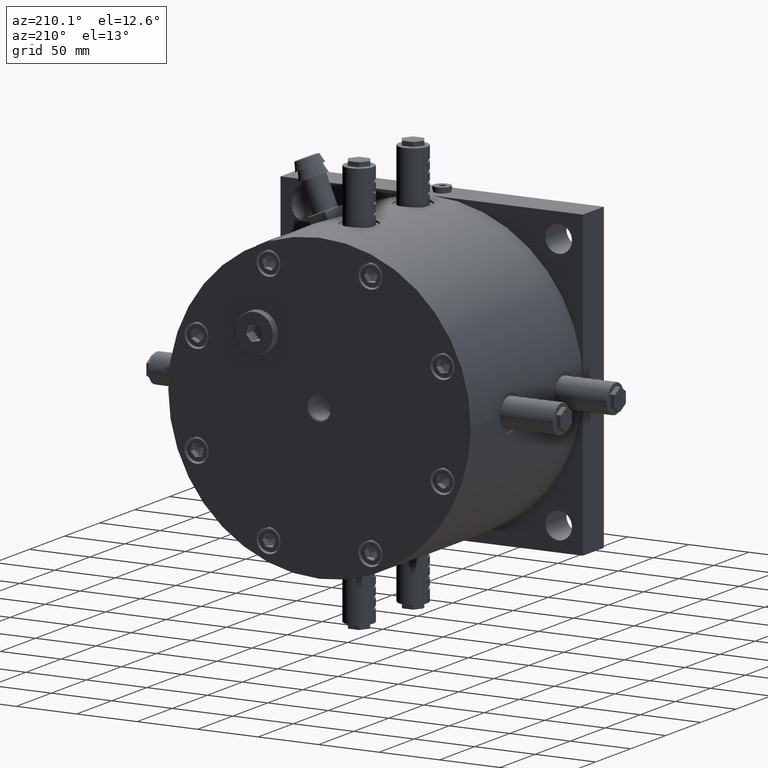
[diagram: clean part render]
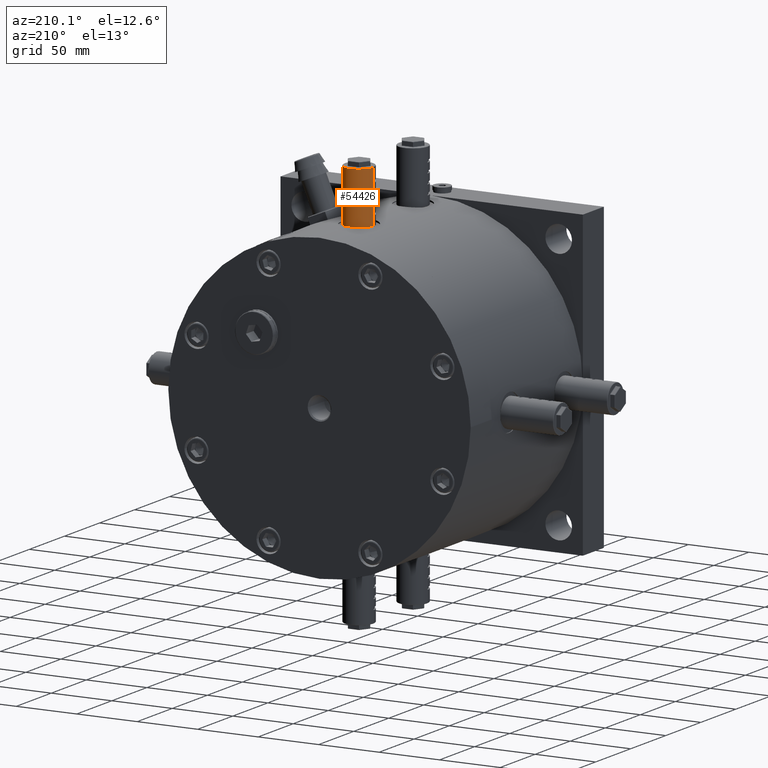
[diagram: same view with one face highlighted and labeled with its STEP entity id]
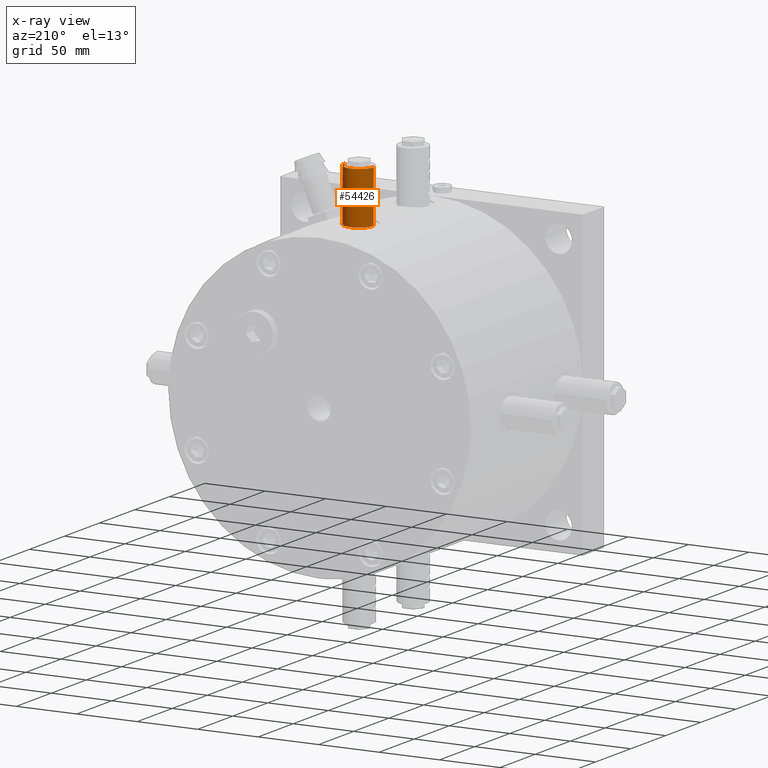
[diagram: x-ray of the same camera — body ghosted, the highlighted face saturated]
A machine part, auxiliary view. The second image highlights one B-rep face of the part: STEP entity #54426.
The next image is the same camera in x-ray: the body ghosted, the highlighted face saturated — about 0% of this face is hidden behind the body in this view.
In plain terms, the highlighted cylindrical surface (edge-blend (fillet) strip) has radius 12 mm, axis along (0, -0, -1).
Its self-contained STEP definition (entity closure, byte-faithful):
#365 = AXIS2_PLACEMENT_3D ( 'NONE', #30028, #13421, #41241 ) ;
#1014 = VECTOR ( 'NONE', #30383, 1000.000000000000000 ) ;
#1232 = LINE ( 'NONE', #38180, #62516 ) ;
#2100 = ORIENTED_EDGE ( 'NONE', *, *, #3323, .F. ) ;
#2605 = DIRECTION ( 'NONE',  ( 7.044192995377391100E-015, -1.648773598957214900E-031, -1.000000000000000000 ) ) ;
#3257 = LINE ( 'NONE', #38839, #9483 ) ;
#3323 = EDGE_CURVE ( 'NONE', #16521, #22548, #29160, .T. ) ;
#3759 = EDGE_CURVE ( 'NONE', #23539, #35993, #34539, .T. ) ;
#3797 = VERTEX_POINT ( 'NONE', #14457 ) ;
#4517 = CARTESIAN_POINT ( 'NONE',  ( -12.00000000000146000, 133.5000000000000000, 147.5000000000000000 ) ) ;
#4571 = CARTESIAN_POINT ( 'NONE',  ( -12.00000000000142100, 133.5000000000000000, 139.5000000000000000 ) ) ;
#5056 = DIRECTION ( 'NONE',  ( -1.000000000000000000, 0.0000000000000000000, -6.938893903907228400E-015 ) ) ;
#5657 = CARTESIAN_POINT ( 'NONE',  ( 11.99999999999839400, 133.5000000000000000, 167.0000000000000900 ) ) ;
#7313 = LINE ( 'NONE', #69705, #43717 ) ;
#7871 = CARTESIAN_POINT ( 'NONE',  ( -12.00000000000162000, 133.5000000000000000, 167.5000000000000000 ) ) ;
#7956 = CARTESIAN_POINT ( 'NONE',  ( 11.99999999999839100, 133.5000000000000000, 167.5000000000000900 ) ) ;
#8820 = VECTOR ( 'NONE', #33848, 1000.000000000000000 ) ;
#8949 = ORIENTED_EDGE ( 'NONE', *, *, #21588, .T. ) ;
#9115 = ORIENTED_EDGE ( 'NONE', *, *, #20057, .F. ) ;
#9483 = VECTOR ( 'NONE', #57953, 1000.000000000000000 ) ;
#11086 = VECTOR ( 'NONE', #72948, 1000.000000000000000 ) ;
#11270 = ORIENTED_EDGE ( 'NONE', *, *, #53453, .F. ) ;
#12644 = LINE ( 'NONE', #73603, #14426 ) ;
#12908 = EDGE_CURVE ( 'NONE', #57618, #16521, #70979, .T. ) ;
#13421 = DIRECTION ( 'NONE',  ( -7.044192995377391100E-015, 1.648773598957214900E-031, 1.000000000000000000 ) ) ;
#13918 = VECTOR ( 'NONE', #22700, 1000.000000000000000 ) ;
#14228 = VECTOR ( 'NONE', #70735, 1000.000000000000000 ) ;
#14426 = VECTOR ( 'NONE', #51227, 1000.000000000000000 ) ;
#14457 = CARTESIAN_POINT ( 'NONE',  ( -12.00000000000130400, 133.5000000000000000, 123.9999999999999100 ) ) ;
#14507 = CARTESIAN_POINT ( 'NONE',  ( -12.00000000000160900, 133.5000000000000000, 167.4999999999999100 ) ) ;
#14864 = CARTESIAN_POINT ( 'NONE',  ( 11.99999999999859800, 133.5000000000000000, 139.5000000000000000 ) ) ;
#15257 = LINE ( 'NONE', #14507, #1014 ) ;
#16137 = CARTESIAN_POINT ( 'NONE',  ( -12.00000000000160900, 133.5000000000000000, 167.4999999999999100 ) ) ;
#16446 = ORIENTED_EDGE ( 'NONE', *, *, #62101, .T. ) ;
#16521 = VERTEX_POINT ( 'NONE', #30272 ) ;
#16926 = CARTESIAN_POINT ( 'NONE',  ( -12.00000000000162000, 133.5000000000000000, 167.5000000000000000 ) ) ;
#17223 = CARTESIAN_POINT ( 'NONE',  ( 11.99999999999840000, 133.5000000000000000, 167.5000000000000000 ) ) ;
#18671 = CIRCLE ( 'NONE', #365, 12.00000000000000000 ) ;
#19310 = VECTOR ( 'NONE', #40046, 1000.000000000000000 ) ;
#19730 = CARTESIAN_POINT ( 'NONE',  ( 11.99999999999864100, 133.5000000000000000, 131.5000000000000000 ) ) ;
#19980 = CARTESIAN_POINT ( 'NONE',  ( -12.00000000000152100, 133.5000000000000000, 155.5000000000000000 ) ) ;
#20057 = EDGE_CURVE ( 'NONE', #65432, #67967, #3257, .T. ) ;
#21212 = ORIENTED_EDGE ( 'NONE', *, *, #12908, .F. ) ;
#21426 = DIRECTION ( 'NONE',  ( 7.044192995377391100E-015, -1.648773598957214900E-031, -1.000000000000000000 ) ) ;
#21588 = EDGE_CURVE ( 'NONE', #43962, #23539, #40380, .T. ) ;
#21899 = EDGE_CURVE ( 'NONE', #26926, #46050, #1232, .T. ) ;
#22070 = VERTEX_POINT ( 'NONE', #5657 ) ;
#22486 = AXIS2_PLACEMENT_3D ( 'NONE', #27391, #21426, #39298 ) ;
#22548 = VERTEX_POINT ( 'NONE', #19980 ) ;
#22655 = EDGE_CURVE ( 'NONE', #58606, #66916, #44990, .T. ) ;
#22700 = DIRECTION ( 'NONE',  ( 7.044192995377391100E-015, -1.648773598957214900E-031, -1.000000000000000000 ) ) ;
#22849 = ORIENTED_EDGE ( 'NONE', *, *, #60139, .F. ) ;
#23539 = VERTEX_POINT ( 'NONE', #72783 ) ;
#24823 = AXIS2_PLACEMENT_3D ( 'NONE', #34295, #39559, #5056 ) ;
#25161 = EDGE_CURVE ( 'NONE', #62042, #3797, #18671, .T. ) ;
#25324 = DIRECTION ( 'NONE',  ( 7.044192995377391100E-015, -1.648773598957214900E-031, -1.000000000000000000 ) ) ;
#25571 = CARTESIAN_POINT ( 'NONE',  ( 11.99999999999839100, 133.5000000000000000, 167.5000000000000900 ) ) ;
#25686 = VECTOR ( 'NONE', #27562, 1000.000000000000000 ) ;
#26250 = LINE ( 'NONE', #16926, #43148 ) ;
#26285 = VERTEX_POINT ( 'NONE', #65208 ) ;
#26385 = CARTESIAN_POINT ( 'NONE',  ( 11.99999999999857900, 133.5000000000000000, 141.5000000000000000 ) ) ;
#26540 = VECTOR ( 'NONE', #40294, 1000.000000000000000 ) ;
#26926 = VERTEX_POINT ( 'NONE', #32811 ) ;
#26948 = EDGE_CURVE ( 'NONE', #43962, #64560, #35271, .T. ) ;
#27391 = CARTESIAN_POINT ( 'NONE',  ( -1.609183911362584900E-012, 133.5000000000000000, 167.5000000000000000 ) ) ;
#27562 = DIRECTION ( 'NONE',  ( 7.044192995377391100E-015, -1.648773598957214900E-031, -1.000000000000000000 ) ) ;
#27623 = ORIENTED_EDGE ( 'NONE', *, *, #25161, .T. ) ;
#27900 = DIRECTION ( 'NONE',  ( -7.044192995377391100E-015, 1.648773598957214900E-031, 1.000000000000000000 ) ) ;
#27938 = CARTESIAN_POINT ( 'NONE',  ( 11.99999999999854000, 133.5000000000000000, 147.5000000000000000 ) ) ;
#29160 = LINE ( 'NONE', #7871, #70909 ) ;
#30028 = CARTESIAN_POINT ( 'NONE',  ( -1.302761516063667800E-012, 133.5000000000000000, 124.0000000000000000 ) ) ;
#30101 = CARTESIAN_POINT ( 'NONE',  ( 11.99999999999839100, 133.5000000000000000, 167.5000000000000900 ) ) ;
#30272 = CARTESIAN_POINT ( 'NONE',  ( -12.00000000000154000, 133.5000000000000000, 157.5000000000000000 ) ) ;
#30320 = ORIENTED_EDGE ( 'NONE', *, *, #57922, .F. ) ;
#30383 = DIRECTION ( 'NONE',  ( 7.044192995377391100E-015, -1.648773598957214900E-031, -1.000000000000000000 ) ) ;
#31490 = LINE ( 'NONE', #16137, #11086 ) ;
#32811 = CARTESIAN_POINT ( 'NONE',  ( -12.00000000000136100, 133.5000000000000000, 131.5000000000000000 ) ) ;
#32859 = VERTEX_POINT ( 'NONE', #40220 ) ;
#33608 = CARTESIAN_POINT ( 'NONE',  ( 11.99999999999839100, 133.5000000000000000, 167.5000000000000900 ) ) ;
#33848 = DIRECTION ( 'NONE',  ( 7.044192995377391100E-015, -1.648773598957214900E-031, -1.000000000000000000 ) ) ;
#34018 = EDGE_LOOP ( 'NONE', ( #21212, #50657, #38579, #9115, #57548, #41124, #16446, #50053, #8949, #65581, #63212, #27623, #35432, #35510, #11270, #30320, #52184, #50033, #22849, #2100 ) ) ;
#34293 = CARTESIAN_POINT ( 'NONE',  ( 11.99999999999840000, 133.5000000000000000, 167.5000000000000000 ) ) ;
#34295 = CARTESIAN_POINT ( 'NONE',  ( -1.605661814864895100E-012, 133.5000000000000000, 167.0000000000000000 ) ) ;
#34539 = LINE ( 'NONE', #53925, #43480 ) ;
#34667 = VERTEX_POINT ( 'NONE', #4571 ) ;
#35271 = LINE ( 'NONE', #34293, #19310 ) ;
#35432 = ORIENTED_EDGE ( 'NONE', *, *, #53233, .F. ) ;
#35510 = ORIENTED_EDGE ( 'NONE', *, *, #21899, .T. ) ;
#35993 = VERTEX_POINT ( 'NONE', #19730 ) ;
#37801 = EDGE_CURVE ( 'NONE', #64731, #32859, #15257, .T. ) ;
#38180 = CARTESIAN_POINT ( 'NONE',  ( -12.00000000000162000, 133.5000000000000000, 167.5000000000000000 ) ) ;
#38579 = ORIENTED_EDGE ( 'NONE', *, *, #47708, .T. ) ;
#38839 = CARTESIAN_POINT ( 'NONE',  ( 11.99999999999840000, 133.5000000000000000, 167.5000000000000000 ) ) ;
#39298 = DIRECTION ( 'NONE',  ( 1.000000000000000000, 0.0000000000000000000, 6.938893903907228400E-015 ) ) ;
#39559 = DIRECTION ( 'NONE',  ( 7.044192995377391100E-015, -1.648773598957214900E-031, -1.000000000000000000 ) ) ;
#40046 = DIRECTION ( 'NONE',  ( -7.044192995377391100E-015, 1.648773598957214900E-031, 1.000000000000000000 ) ) ;
#40220 = CARTESIAN_POINT ( 'NONE',  ( -12.00000000000142100, 133.5000000000000000, 141.5000000000000000 ) ) ;
#40294 = DIRECTION ( 'NONE',  ( 7.044192995377391100E-015, -1.648773598957214900E-031, -1.000000000000000000 ) ) ;
#40380 = LINE ( 'NONE', #7956, #57242 ) ;
#41124 = ORIENTED_EDGE ( 'NONE', *, *, #22655, .F. ) ;
#41241 = DIRECTION ( 'NONE',  ( -1.000000000000000000, 0.0000000000000000000, -6.938893903907228400E-015 ) ) ;
#41310 = EDGE_CURVE ( 'NONE', #57618, #22070, #61077, .T. ) ;
#42359 = EDGE_CURVE ( 'NONE', #35993, #62042, #69798, .T. ) ;
#43148 = VECTOR ( 'NONE', #25324, 1000.000000000000000 ) ;
#43480 = VECTOR ( 'NONE', #53415, 1000.000000000000000 ) ;
#43717 = VECTOR ( 'NONE', #64993, 1000.000000000000000 ) ;
#43962 = VERTEX_POINT ( 'NONE', #14864 ) ;
#44990 = LINE ( 'NONE', #17223, #54765 ) ;
#46050 = VERTEX_POINT ( 'NONE', #50167 ) ;
#46581 = VECTOR ( 'NONE', #59606, 1000.000000000000000 ) ;
#46727 = CARTESIAN_POINT ( 'NONE',  ( -12.00000000000160600, 133.5000000000000000, 166.9999999999999100 ) ) ;
#46949 = LINE ( 'NONE', #33608, #8820 ) ;
#47134 = DIRECTION ( 'NONE',  ( 7.044192995377391100E-015, -1.648773598957214900E-031, -1.000000000000000000 ) ) ;
#47708 = EDGE_CURVE ( 'NONE', #22070, #67967, #46949, .T. ) ;
#50033 = ORIENTED_EDGE ( 'NONE', *, *, #52577, .F. ) ;
#50053 = ORIENTED_EDGE ( 'NONE', *, *, #26948, .F. ) ;
#50167 = CARTESIAN_POINT ( 'NONE',  ( -12.00000000000138000, 133.5000000000000000, 133.5000000000000000 ) ) ;
#50507 = LINE ( 'NONE', #30101, #26540 ) ;
#50581 = LINE ( 'NONE', #25571, #14228 ) ;
#50657 = ORIENTED_EDGE ( 'NONE', *, *, #41310, .T. ) ;
#51227 = DIRECTION ( 'NONE',  ( 7.044192995377391100E-015, -1.648773598957214900E-031, -1.000000000000000000 ) ) ;
#51703 = CYLINDRICAL_SURFACE ( 'NONE', #22486, 12.00000000000000000 ) ;
#52184 = ORIENTED_EDGE ( 'NONE', *, *, #37801, .F. ) ;
#52577 = EDGE_CURVE ( 'NONE', #26285, #64731, #12644, .T. ) ;
#53233 = EDGE_CURVE ( 'NONE', #26926, #3797, #59962, .T. ) ;
#53415 = DIRECTION ( 'NONE',  ( 7.044192995377391100E-015, -1.648773598957214900E-031, -1.000000000000000000 ) ) ;
#53453 = EDGE_CURVE ( 'NONE', #34667, #46050, #31490, .T. ) ;
#53925 = CARTESIAN_POINT ( 'NONE',  ( 11.99999999999840000, 133.5000000000000000, 167.5000000000000000 ) ) ;
#54426 = ADVANCED_FACE ( 'NONE', ( #54470 ), #51703, .T. ) ;
#54470 = FACE_OUTER_BOUND ( 'NONE', #34018, .T. ) ;
#54765 = VECTOR ( 'NONE', #27900, 1000.000000000000000 ) ;
#56201 = CARTESIAN_POINT ( 'NONE',  ( 11.99999999999870000, 133.5000000000000000, 124.0000000000000900 ) ) ;
#57022 = CARTESIAN_POINT ( 'NONE',  ( 11.99999999999847900, 133.5000000000000000, 155.5000000000000000 ) ) ;
#57242 = VECTOR ( 'NONE', #47134, 1000.000000000000000 ) ;
#57467 = CARTESIAN_POINT ( 'NONE',  ( 11.99999999999839100, 133.5000000000000000, 167.5000000000000900 ) ) ;
#57548 = ORIENTED_EDGE ( 'NONE', *, *, #70838, .T. ) ;
#57618 = VERTEX_POINT ( 'NONE', #46727 ) ;
#57922 = EDGE_CURVE ( 'NONE', #32859, #34667, #26250, .T. ) ;
#57953 = DIRECTION ( 'NONE',  ( -7.044192995377391100E-015, 1.648773598957214900E-031, 1.000000000000000000 ) ) ;
#58606 = VERTEX_POINT ( 'NONE', #27938 ) ;
#59606 = DIRECTION ( 'NONE',  ( 7.044192995377391100E-015, -1.648773598957214900E-031, -1.000000000000000000 ) ) ;
#59962 = LINE ( 'NONE', #70739, #46581 ) ;
#60139 = EDGE_CURVE ( 'NONE', #22548, #26285, #7313, .T. ) ;
#61077 = CIRCLE ( 'NONE', #24823, 12.00000000000000000 ) ;
#61562 = CARTESIAN_POINT ( 'NONE',  ( -12.00000000000160900, 133.5000000000000000, 167.4999999999999100 ) ) ;
#62042 = VERTEX_POINT ( 'NONE', #56201 ) ;
#62101 = EDGE_CURVE ( 'NONE', #58606, #64560, #50507, .T. ) ;
#62516 = VECTOR ( 'NONE', #71933, 1000.000000000000000 ) ;
#63212 = ORIENTED_EDGE ( 'NONE', *, *, #42359, .T. ) ;
#63505 = CARTESIAN_POINT ( 'NONE',  ( 11.99999999999846000, 133.5000000000000000, 157.5000000000000000 ) ) ;
#64560 = VERTEX_POINT ( 'NONE', #26385 ) ;
#64731 = VERTEX_POINT ( 'NONE', #4517 ) ;
#64993 = DIRECTION ( 'NONE',  ( 7.044192995377391100E-015, -1.648773598957214900E-031, -1.000000000000000000 ) ) ;
#65208 = CARTESIAN_POINT ( 'NONE',  ( -12.00000000000150100, 133.5000000000000000, 149.5000000000000000 ) ) ;
#65432 = VERTEX_POINT ( 'NONE', #57022 ) ;
#65581 = ORIENTED_EDGE ( 'NONE', *, *, #3759, .T. ) ;
#66916 = VERTEX_POINT ( 'NONE', #72467 ) ;
#67967 = VERTEX_POINT ( 'NONE', #63505 ) ;
#69705 = CARTESIAN_POINT ( 'NONE',  ( -12.00000000000160900, 133.5000000000000000, 167.4999999999999100 ) ) ;
#69798 = LINE ( 'NONE', #57467, #13918 ) ;
#70735 = DIRECTION ( 'NONE',  ( 7.044192995377391100E-015, -1.648773598957214900E-031, -1.000000000000000000 ) ) ;
#70739 = CARTESIAN_POINT ( 'NONE',  ( -12.00000000000160900, 133.5000000000000000, 167.4999999999999100 ) ) ;
#70838 = EDGE_CURVE ( 'NONE', #65432, #66916, #50581, .T. ) ;
#70909 = VECTOR ( 'NONE', #2605, 1000.000000000000000 ) ;
#70979 = LINE ( 'NONE', #61562, #25686 ) ;
#71933 = DIRECTION ( 'NONE',  ( -7.044192995377391100E-015, 1.648773598957214900E-031, 1.000000000000000000 ) ) ;
#72467 = CARTESIAN_POINT ( 'NONE',  ( 11.99999999999851900, 133.5000000000000000, 149.5000000000000000 ) ) ;
#72783 = CARTESIAN_POINT ( 'NONE',  ( 11.99999999999864100, 133.5000000000000000, 133.5000000000000000 ) ) ;
#72948 = DIRECTION ( 'NONE',  ( 7.044192995377391100E-015, -1.648773598957214900E-031, -1.000000000000000000 ) ) ;
#73603 = CARTESIAN_POINT ( 'NONE',  ( -12.00000000000162000, 133.5000000000000000, 167.5000000000000000 ) ) ;